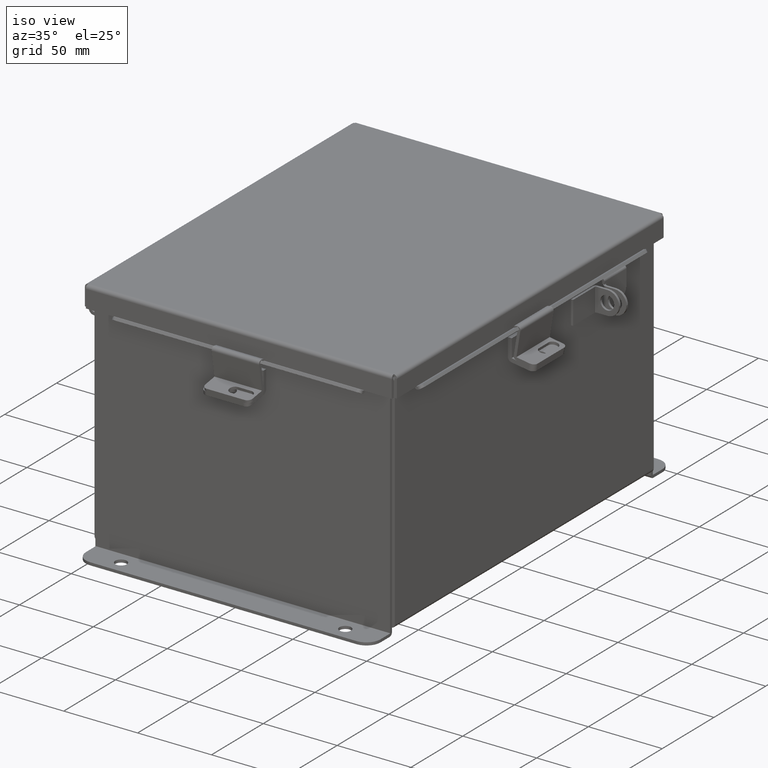
[diagram: clean part render]
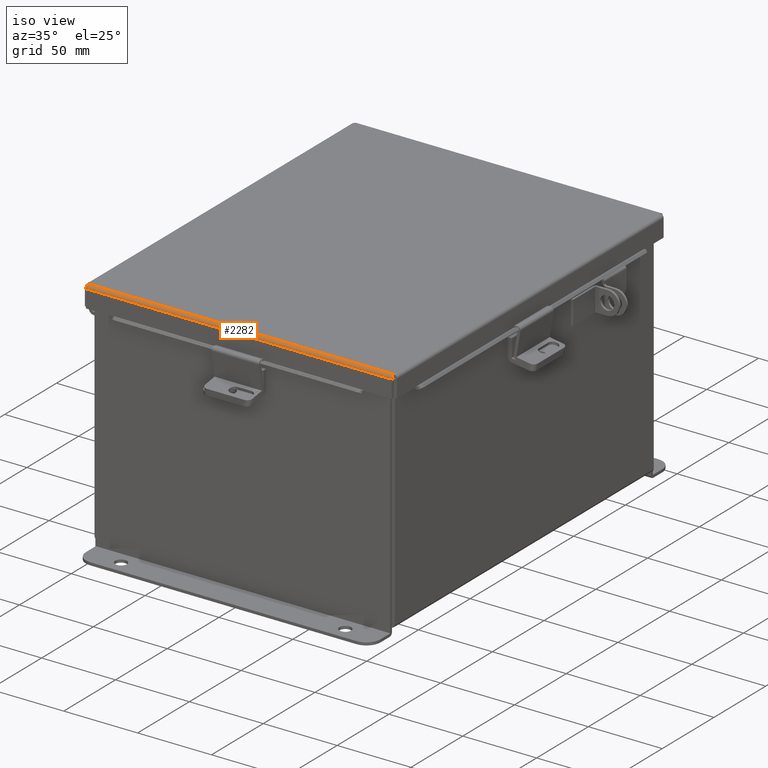
[diagram: same view with one face highlighted and labeled with its STEP entity id]
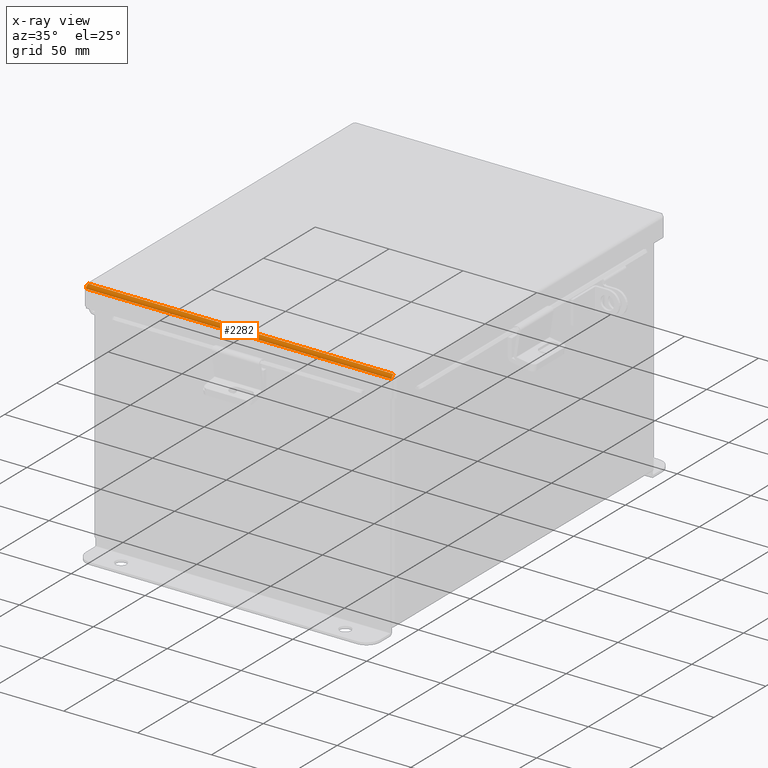
[diagram: x-ray of the same camera — body ghosted, the highlighted face saturated]
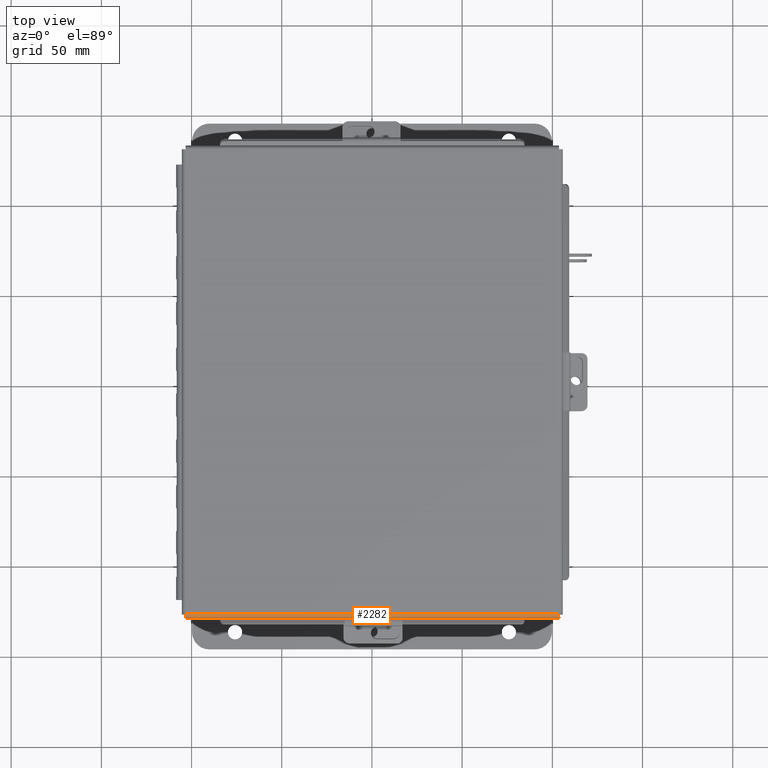
[diagram: same view with one face highlighted and labeled with its STEP entity id]
A machine part, iso view. The second image highlights one B-rep face of the part: STEP entity #2282.
The next image is the same camera in x-ray: the body ghosted, the highlighted face saturated — about 0% of this face is hidden behind the body in this view.
A second angle (top view) of the same face is appended — the face is thin or edge-on in the first view.
In plain terms, the highlighted cylindrical surface (edge-blend (fillet) strip) has radius 2.2276 mm, axis along (-1, 0, -0).
Its self-contained STEP definition (entity closure, byte-faithful):
#348 = CARTESIAN_POINT ( 'NONE',  ( -4.156250000000000000, -5.156250000000000900, 0.01299999999999978100 ) ) ;
#465 = CARTESIAN_POINT ( 'NONE',  ( -4.074478932188133800, -5.156250000000000900, 0.01299999999999977400 ) ) ;
#859 = CARTESIAN_POINT ( 'NONE',  ( 4.069538155364689700, -5.091505289458310400, -0.07241740374381121200 ) ) ;
#979 = B_SPLINE_CURVE_WITH_KNOTS ( 'NONE', 3,
 ( #9739, #11020, #5949, #14856, #7218, #16141, #8505, #859, #9791, #2144 ),
 .UNSPECIFIED., .F., .F.,
 ( 4, 2, 2, 2, 4 ),
 ( 0.0000000000000000000, 0.2500000000000000000, 0.5000000000000000000, 0.7500000000000000000, 1.000000000000000000 ),
 .UNSPECIFIED. ) ;
#1575 = CARTESIAN_POINT ( 'NONE',  ( -4.069538155364688800, -5.091505289458312200, -0.07241740374381121200 ) ) ;
#2144 = CARTESIAN_POINT ( 'NONE',  ( 4.068550000000001000, -5.068550000000001000, -0.07469999999999993300 ) ) ;
#2282 = ADVANCED_FACE ( 'NONE', ( #14680 ), #13129, .T. ) ;
#2402 = ORIENTED_EDGE ( 'NONE', *, *, #14973, .F. ) ;
#2436 = EDGE_CURVE ( 'NONE', #8787, #8791, #14921, .T. ) ;
#2864 = CARTESIAN_POINT ( 'NONE',  ( -4.071020388411722200, -5.122445747341800800, -0.05713078207832041800 ) ) ;
#3957 = B_SPLINE_CURVE_WITH_KNOTS ( 'NONE', 3,
 ( #10450, #7949, #1575, #10506, #2864, #11787, #4167, #13071, #5440, #14361 ),
 .UNSPECIFIED., .F., .F.,
 ( 4, 2, 2, 2, 4 ),
 ( 0.0000000000000000000, 0.2500000000000000000, 0.5000000000000000000, 0.7500000000000000000, 1.000000000000000000 ),
 .UNSPECIFIED. ) ;
#4167 = CARTESIAN_POINT ( 'NONE',  ( -4.072502621458755600, -5.145181066258668800, -0.03116738457852800300 ) ) ;
#4456 = CARTESIAN_POINT ( 'NONE',  ( 4.074478932188136500, -5.156250000000000900, 0.01299999999999977900 ) ) ;
#5261 = DIRECTION ( 'NONE',  ( 0.0000000000000000000, -1.000000000000000000, -4.477801015840783100E-015 ) ) ;
#5410 = CARTESIAN_POINT ( 'NONE',  ( 4.068550000000001000, -5.068550000000001000, -0.07469999999999993300 ) ) ;
#5440 = CARTESIAN_POINT ( 'NONE',  ( -4.073984854505789100, -5.156250000000000900, 0.001520096845007091700 ) ) ;
#5949 = CARTESIAN_POINT ( 'NONE',  ( 4.073490776823447800, -5.153967403743813200, -0.009955289458309056500 ) ) ;
#6674 = CARTESIAN_POINT ( 'NONE',  ( -4.068549999999999200, -5.068550000000001000, -0.07469999999999994700 ) ) ;
#7218 = CARTESIAN_POINT ( 'NONE',  ( 4.072008543776414400, -5.138680782078322000, -0.04089574734180010500 ) ) ;
#7568 = ORIENTED_EDGE ( 'NONE', *, *, #10335, .F. ) ;
#7949 = CARTESIAN_POINT ( 'NONE',  ( -4.069044077682344000, -5.080029903154993100, -0.07469999999999994700 ) ) ;
#7976 = DIRECTION ( 'NONE',  ( -1.000000000000000000, 3.684809048101456700E-032, 1.613820990588604500E-046 ) ) ;
#8094 = VECTOR ( 'NONE', #7976, 39.37007874015748100 ) ;
#8141 = DIRECTION ( 'NONE',  ( -1.000000000000000000, 0.0000000000000000000, 0.0000000000000000000 ) ) ;
#8505 = CARTESIAN_POINT ( 'NONE',  ( 4.070526310729380100, -5.112717384578529900, -0.06363106625866837800 ) ) ;
#8787 = VERTEX_POINT ( 'NONE', #5410 ) ;
#8791 = VERTEX_POINT ( 'NONE', #6674 ) ;
#8922 = ORIENTED_EDGE ( 'NONE', *, *, #10984, .T. ) ;
#9097 = CARTESIAN_POINT ( 'NONE',  ( 4.074478932188136500, -5.068550000000001000, 0.01300000000000016400 ) ) ;
#9739 = CARTESIAN_POINT ( 'NONE',  ( 4.074478932188136500, -5.156250000000000900, 0.01299999999999977900 ) ) ;
#9791 = CARTESIAN_POINT ( 'NONE',  ( 4.069044077682345800, -5.080029903154994000, -0.07469999999999994700 ) ) ;
#10335 = EDGE_CURVE ( 'NONE', #8791, #15441, #3957, .T. ) ;
#10450 = CARTESIAN_POINT ( 'NONE',  ( -4.068549999999999200, -5.068550000000001000, -0.07469999999999994700 ) ) ;
#10506 = CARTESIAN_POINT ( 'NONE',  ( -4.070526310729378300, -5.112717384578526300, -0.06363106625866835100 ) ) ;
#10984 = EDGE_CURVE ( 'NONE', #15981, #15441, #14886, .T. ) ;
#11020 = CARTESIAN_POINT ( 'NONE',  ( 4.073984854505790800, -5.156250000000000900, 0.001520096845007091700 ) ) ;
#11642 = DIRECTION ( 'NONE',  ( 1.000000000000000000, -0.0000000000000000000, -0.0000000000000000000 ) ) ;
#11787 = CARTESIAN_POINT ( 'NONE',  ( -4.072008543776411700, -5.138680782078323800, -0.04089574734180011200 ) ) ;
#13071 = CARTESIAN_POINT ( 'NONE',  ( -4.073490776823445200, -5.153967403743813200, -0.009955289458309054700 ) ) ;
#13129 = CYLINDRICAL_SURFACE ( 'NONE', #15733, 0.08770000000000026400 ) ;
#14190 = ORIENTED_EDGE ( 'NONE', *, *, #2436, .F. ) ;
#14361 = CARTESIAN_POINT ( 'NONE',  ( -4.074478932188133800, -5.156250000000000900, 0.01299999999999977400 ) ) ;
#14680 = FACE_OUTER_BOUND ( 'NONE', #16433, .T. ) ;
#14856 = CARTESIAN_POINT ( 'NONE',  ( 4.072502621458756500, -5.145181066258667000, -0.03116738457852799900 ) ) ;
#14886 = LINE ( 'NONE', #348, #8094 ) ;
#14921 = LINE ( 'NONE', #15780, #15329 ) ;
#14973 = EDGE_CURVE ( 'NONE', #15981, #8787, #979, .T. ) ;
#15329 = VECTOR ( 'NONE', #8141, 39.37007874015748100 ) ;
#15441 = VERTEX_POINT ( 'NONE', #465 ) ;
#15733 = AXIS2_PLACEMENT_3D ( 'NONE', #9097, #11642, #5261 ) ;
#15780 = CARTESIAN_POINT ( 'NONE',  ( 4.074478932188136500, -5.068550000000001000, -0.07469999999999993300 ) ) ;
#15981 = VERTEX_POINT ( 'NONE', #4456 ) ;
#16141 = CARTESIAN_POINT ( 'NONE',  ( 4.071020388411724000, -5.122445747341801700, -0.05713078207832041800 ) ) ;
#16433 = EDGE_LOOP ( 'NONE', ( #14190, #2402, #8922, #7568 ) ) ;